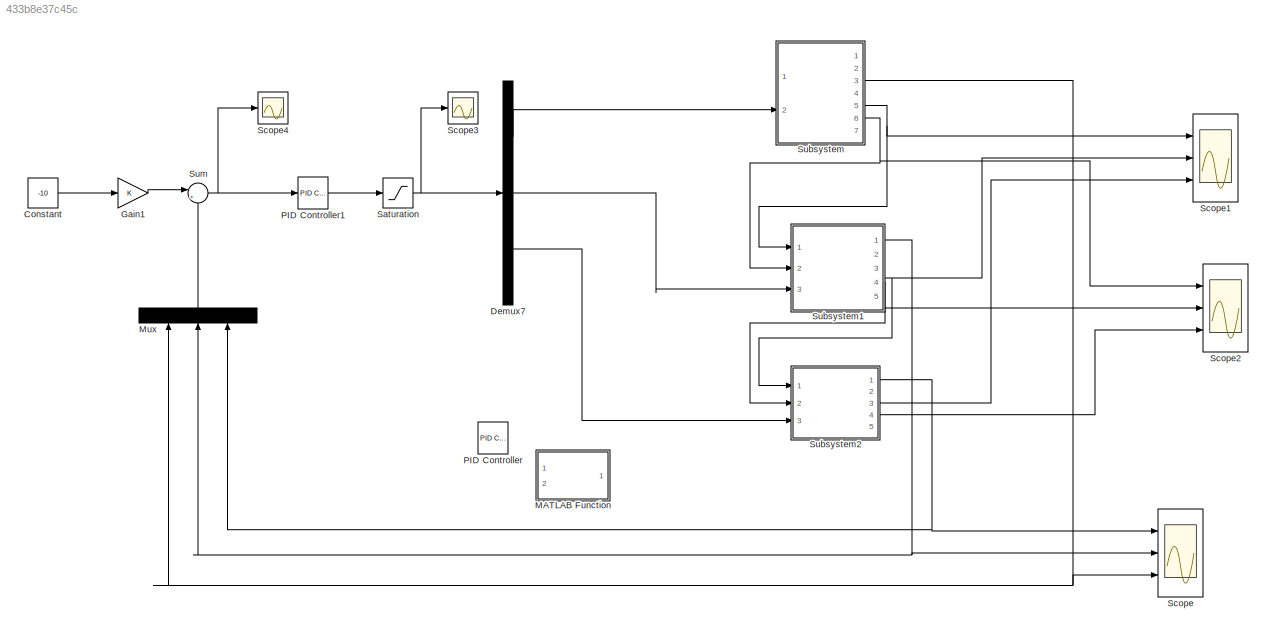
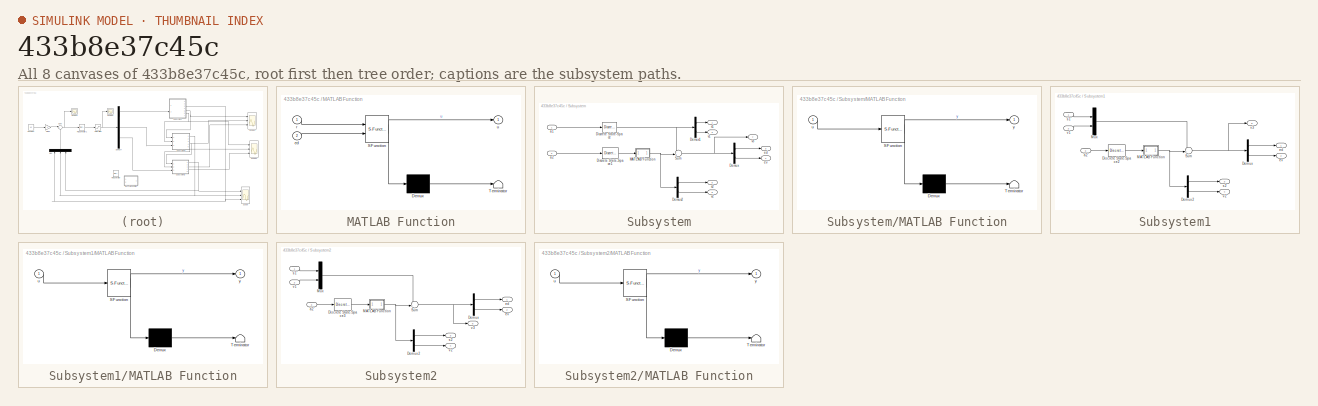
[diagram: thumbnail index - all 8 canvases of the model, root first then tree order]
MODEL slx_433b8e37c45c
KIND model
CONFIG AbsTol = auto
CONFIG EnableMultiTasking = off
CONFIG FixedStep = 0.1
CONFIG MaxStep = 1E-3
CONFIG MinStep = auto
CONFIG RelTol = 1e-3
CONFIG SampleTimeConstraint = Unconstrained
CONFIG Solver = FixedStepAuto
CONFIG SolverName = FixedStepAuto
CONFIG StartTime = 0.0
CONFIG StopTime = 500
BLOCK [Constant] Constant
  Value = -10
BLOCK [Demux] Demux7
  DisplayOption = bar
  Outputs = 3
  Ports = [1, 3]
BLOCK [Gain] Gain1
  OutDataTypeStr = Inherit: Inherit via internal rule
  ParamDataTypeStr = Inherit: Inherit via internal rule
  SaturateOnIntegerOverflow = off
BLOCK [SubSystem] MATLAB Function
  Commented = on
  ErrorFcn = Stateflow.Translate.translate
  PermitHierarchicalResolution = ExplicitOnly
  Ports = [2, 1]
  RequestExecContextInheritance = off
  SFBlockType = MATLAB Function
  TreatAsAtomicUnit = on
BLOCK [Demux] MATLAB Function/ Demux 
  Outputs = 1
  Ports = [1, 1]
BLOCK [S-Function] MATLAB Function/ SFunction 
  EnableBusSupport = on
  FunctionName = sf_sfun
  PortCounts = [2 2]
  Ports = [2, 2]
  SFcnIsStateOwnerBlock = off
  SFunctionDeploymentMode = off
  Tag = Stateflow S-Function onolfihjsihjn 3
BLOCK [Terminator] MATLAB Function/ Terminator 
BLOCK [Inport] MATLAB Function/ed
  IconDisplay = Port number
  Port = 2
BLOCK [Inport] MATLAB Function/r
  IconDisplay = Port number
BLOCK [Outport] MATLAB Function/u
  IconDisplay = Port number
BLOCK [Mux] Mux
  DisplayOption = bar
  Inputs = 3
  Ports = [3, 1]
BLOCK [Reference] PID Controller  REF=simulink/Continuous/PID Controller
  Commented = on
  Ports = [1, 1]
  SourceBlock = simulink/Continuous/PID Controller
  SourceProductBaseCode = SL
  SourceProductName = Simulink
  SourceType = PID 1dof
BLOCK [Reference] PID Controller1  REF=simulink/Continuous/PID Controller
  Ports = [1, 1]
  SourceBlock = simulink/Continuous/PID Controller
  SourceProductBaseCode = SL
  SourceProductName = Simulink
  SourceType = PID 1dof
BLOCK [Saturate] Saturation
  InputPortMap = u0
  LowerLimit = -5
  Ports = [1, 1]
  UpperLimit = 3
BLOCK [Scope] Scope
  Floating = off
  NumInputPorts = 3
  Ports = [3]
  ScopeSpecificationString = Simulink.scopes.TimeScopeBlockCfg('CurrentConfiguration', extmgr.ConfigurationSet(extmgr.Configuration('Core','General UI',true),extmgr.Configuration('Core','Source UI',true),extmgr.Configuration('Sources','WiredSimulink',true),extmgr.Configuration('Visuals','Time Domain',true,'SerializedDisplays',{struct('MinYLimReal','-120.75898','MaxYLimReal','7.9743','YLabelReal','','MinYLimMag',' 0.00000','Ma...<+1388ch>
BLOCK [Scope] Scope1
  Floating = off
  NumInputPorts = 3
  Ports = [3]
  ScopeSpecificationString = Simulink.scopes.TimeScopeBlockCfg('CurrentConfiguration', extmgr.ConfigurationSet(extmgr.Configuration('Core','General UI',true),extmgr.Configuration('Core','Source UI',true),extmgr.Configuration('Sources','WiredSimulink',true,'DataLoggingVariableName','ScopeData1'),extmgr.Configuration('Visuals','Time Domain',true,'SerializedDisplays',{struct('MinYLimReal','-811.25','MaxYLimReal','4301.25','YLabe...<+1444ch>
BLOCK [Scope] Scope2
  Floating = off
  NumInputPorts = 3
  Ports = [3]
  ScopeSpecificationString = Simulink.scopes.TimeScopeBlockCfg('CurrentConfiguration', extmgr.ConfigurationSet(extmgr.Configuration('Core','General UI',true),extmgr.Configuration('Core','Source UI',true),extmgr.Configuration('Sources','WiredSimulink',true,'DataLoggingVariableName','ScopeData2'),extmgr.Configuration('Visuals','Time Domain',true,'SerializedDisplays',{struct('MinYLimReal','14.45367','MaxYLimReal','23.94959','YLa...<+1477ch>
BLOCK [Scope] Scope3
  Floating = off
  NumInputPorts = 1
  Ports = [1]
  ScopeSpecificationString = Simulink.scopes.TimeScopeBlockCfg('CurrentConfiguration', extmgr.ConfigurationSet(extmgr.Configuration('Core','General UI',true),extmgr.Configuration('Core','Source UI',true),extmgr.Configuration('Sources','WiredSimulink',true,'DataLoggingVariableName','ScopeData1'),extmgr.Configuration('Visuals','Time Domain',true,'SerializedDisplays',{struct('MinYLimReal','-3.02279','MaxYLimReal','3.6692','YLabe...<+1397ch>
BLOCK [Scope] Scope4
  Floating = off
  NumInputPorts = 1
  Ports = [1]
  ScopeSpecificationString = Simulink.scopes.TimeScopeBlockCfg('CurrentConfiguration', extmgr.ConfigurationSet(extmgr.Configuration('Core','General UI',true),extmgr.Configuration('Core','Source UI',true),extmgr.Configuration('Sources','WiredSimulink',true,'DataLoggingVariableName','ScopeData2'),extmgr.Configuration('Visuals','Time Domain',true,'SerializedDisplays',{struct('MinYLimReal','-14.55745','MaxYLimReal','109.49593','Y...<+1390ch>
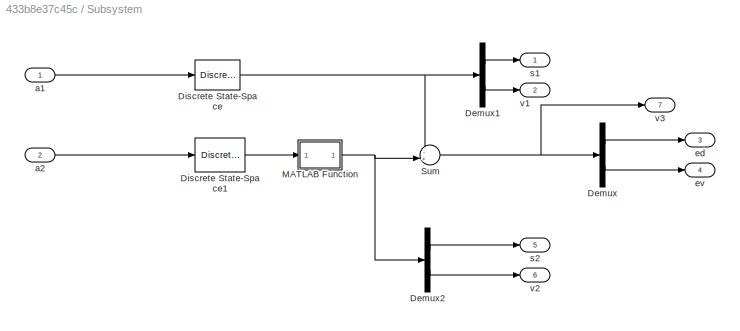
BLOCK [SubSystem] Subsystem
  Ports = [2, 7]
  RequestExecContextInheritance = off
BLOCK [Demux] Subsystem/Demux
  DisplayOption = bar
  Outputs = 2
  Ports = [1, 2]
BLOCK [Demux] Subsystem/Demux1
  DisplayOption = bar
  Outputs = 2
  Ports = [1, 2]
BLOCK [Demux] Subsystem/Demux2
  DisplayOption = bar
  Outputs = 2
  Ports = [1, 2]
BLOCK [DiscreteStateSpace] Subsystem/Discrete State-Space
  A = Ad
  B = bd
  C = eye(2)
  D = zeros(2,1)
  InitialCondition = [0;19]
  SampleTime = SumoTs
BLOCK [DiscreteStateSpace] Subsystem/Discrete State-Space1
  A = Ad
  B = bd
  C = eye(2)
  D = zeros(2,1)
  InitialCondition = [-100;22]
  SampleTime = SumoTs
BLOCK [SubSystem] Subsystem/MATLAB Function
  ErrorFcn = Stateflow.Translate.translate
  PermitHierarchicalResolution = ExplicitOnly
  Ports = [1, 1]
  RequestExecContextInheritance = off
  SFBlockType = MATLAB Function
  TreatAsAtomicUnit = on
BLOCK [Demux] Subsystem/MATLAB Function/ Demux 
  Outputs = 1
  Ports = [1, 1]
BLOCK [S-Function] Subsystem/MATLAB Function/ SFunction 
  EnableBusSupport = on
  FunctionName = sf_sfun
  PortCounts = [1 2]
  Ports = [1, 2]
  SFcnIsStateOwnerBlock = off
  SFunctionDeploymentMode = off
  Tag = Stateflow S-Function onolfihjsihjn 4
BLOCK [Terminator] Subsystem/MATLAB Function/ Terminator 
BLOCK [Inport] Subsystem/MATLAB Function/u
  IconDisplay = Port number
BLOCK [Outport] Subsystem/MATLAB Function/y
  IconDisplay = Port number
BLOCK [Sum] Subsystem/Sum
  IconShape = round
  InputSameDT = off
  Inputs = -+|
  OutDataTypeStr = Inherit: Inherit via internal rule
  Ports = [2, 1]
  SaturateOnIntegerOverflow = off
BLOCK [Inport] Subsystem/a1
  IconDisplay = Port number
BLOCK [Inport] Subsystem/a2
  IconDisplay = Port number
  Port = 2
BLOCK [Outport] Subsystem/ed
  IconDisplay = Port number
  Port = 3
BLOCK [Outport] Subsystem/ev
  IconDisplay = Port number
  Port = 4
BLOCK [Outport] Subsystem/s1
  IconDisplay = Port number
BLOCK [Outport] Subsystem/s2
  IconDisplay = Port number
  Port = 5
BLOCK [Outport] Subsystem/v1
  IconDisplay = Port number
  Port = 2
BLOCK [Outport] Subsystem/v2
  IconDisplay = Port number
  Port = 6
BLOCK [Outport] Subsystem/v3
  IconDisplay = Port number
  Port = 7
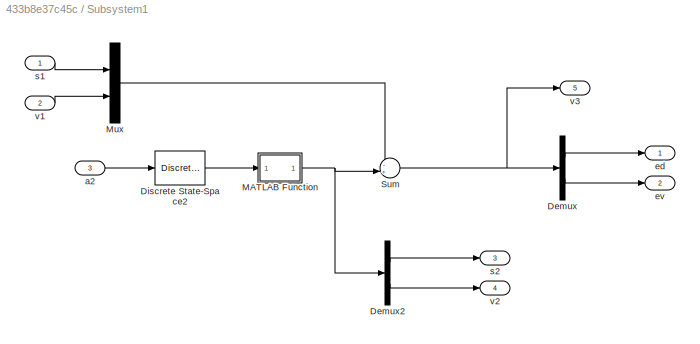
BLOCK [SubSystem] Subsystem1
  Ports = [3, 5]
  RequestExecContextInheritance = off
BLOCK [Demux] Subsystem1/Demux
  DisplayOption = bar
  Outputs = 2
  Ports = [1, 2]
BLOCK [Demux] Subsystem1/Demux2
  DisplayOption = bar
  Outputs = 2
  Ports = [1, 2]
BLOCK [DiscreteStateSpace] Subsystem1/Discrete State-Space2
  A = Ad
  B = bd
  C = eye(2)
  D = zeros(2,1)
  InitialCondition = [-200;19]
  SampleTime = SumoTs
BLOCK [SubSystem] Subsystem1/MATLAB Function
  ErrorFcn = Stateflow.Translate.translate
  PermitHierarchicalResolution = ExplicitOnly
  Ports = [1, 1]
  RequestExecContextInheritance = off
  SFBlockType = MATLAB Function
  TreatAsAtomicUnit = on
BLOCK [Demux] Subsystem1/MATLAB Function/ Demux 
  Outputs = 1
  Ports = [1, 1]
BLOCK [S-Function] Subsystem1/MATLAB Function/ SFunction 
  EnableBusSupport = on
  FunctionName = sf_sfun
  PortCounts = [1 2]
  Ports = [1, 2]
  SFcnIsStateOwnerBlock = off
  SFunctionDeploymentMode = off
  Tag = Stateflow S-Function onolfihjsihjn 1
BLOCK [Terminator] Subsystem1/MATLAB Function/ Terminator 
BLOCK [Inport] Subsystem1/MATLAB Function/u
  IconDisplay = Port number
BLOCK [Outport] Subsystem1/MATLAB Function/y
  IconDisplay = Port number
BLOCK [Mux] Subsystem1/Mux
  DisplayOption = bar
  Inputs = 2
  Ports = [2, 1]
BLOCK [Sum] Subsystem1/Sum
  IconShape = round
  InputSameDT = off
  Inputs = -+|
  OutDataTypeStr = Inherit: Inherit via internal rule
  Ports = [2, 1]
  SaturateOnIntegerOverflow = off
BLOCK [Inport] Subsystem1/a2
  IconDisplay = Port number
  Port = 3
BLOCK [Outport] Subsystem1/ed
  IconDisplay = Port number
BLOCK [Outport] Subsystem1/ev
  IconDisplay = Port number
  Port = 2
BLOCK [Inport] Subsystem1/s1
  IconDisplay = Port number
BLOCK [Outport] Subsystem1/s2
  IconDisplay = Port number
  Port = 3
BLOCK [Inport] Subsystem1/v1
  IconDisplay = Port number
  Port = 2
BLOCK [Outport] Subsystem1/v2
  IconDisplay = Port number
  Port = 4
BLOCK [Outport] Subsystem1/v3
  IconDisplay = Port number
  Port = 5
BLOCK [SubSystem] Subsystem2
  Ports = [3, 5]
  RequestExecContextInheritance = off
BLOCK [Demux] Subsystem2/Demux
  DisplayOption = bar
  Outputs = 2
  Ports = [1, 2]
BLOCK [Demux] Subsystem2/Demux2
  DisplayOption = bar
  Outputs = 2
  Ports = [1, 2]
BLOCK [DiscreteStateSpace] Subsystem2/Discrete State-Space3
  A = Ad
  B = bd
  C = eye(2)
  D = zeros(2,1)
  InitialCondition = [-280;22]
  SampleTime = SumoTs
BLOCK [SubSystem] Subsystem2/MATLAB Function
  ErrorFcn = Stateflow.Translate.translate
  PermitHierarchicalResolution = ExplicitOnly
  Ports = [1, 1]
  RequestExecContextInheritance = off
  SFBlockType = MATLAB Function
  TreatAsAtomicUnit = on
BLOCK [Demux] Subsystem2/MATLAB Function/ Demux 
  Outputs = 1
  Ports = [1, 1]
BLOCK [S-Function] Subsystem2/MATLAB Function/ SFunction 
  EnableBusSupport = on
  FunctionName = sf_sfun
  PortCounts = [1 2]
  Ports = [1, 2]
  SFcnIsStateOwnerBlock = off
  SFunctionDeploymentMode = off
  Tag = Stateflow S-Function onolfihjsihjn 2
BLOCK [Terminator] Subsystem2/MATLAB Function/ Terminator 
BLOCK [Inport] Subsystem2/MATLAB Function/u
  IconDisplay = Port number
BLOCK [Outport] Subsystem2/MATLAB Function/y
  IconDisplay = Port number
BLOCK [Mux] Subsystem2/Mux
  DisplayOption = bar
  Inputs = 2
  Ports = [2, 1]
BLOCK [Sum] Subsystem2/Sum
  IconShape = round
  InputSameDT = off
  Inputs = -+|
  OutDataTypeStr = Inherit: Inherit via internal rule
  Ports = [2, 1]
  SaturateOnIntegerOverflow = off
BLOCK [Inport] Subsystem2/a2
  IconDisplay = Port number
  Port = 3
BLOCK [Outport] Subsystem2/ed
  IconDisplay = Port number
BLOCK [Outport] Subsystem2/ev
  IconDisplay = Port number
  Port = 2
BLOCK [Inport] Subsystem2/s1
  IconDisplay = Port number
BLOCK [Outport] Subsystem2/s2
  IconDisplay = Port number
  Port = 3
BLOCK [Inport] Subsystem2/v1
  IconDisplay = Port number
  Port = 2
BLOCK [Outport] Subsystem2/v2
  IconDisplay = Port number
  Port = 4
BLOCK [Outport] Subsystem2/v3
  IconDisplay = Port number
  Port = 5
BLOCK [Sum] Sum
  IconShape = round
  InputSameDT = off
  Inputs = |+-
  OutDataTypeStr = Inherit: Inherit via internal rule
  Ports = [2, 1]
  SaturateOnIntegerOverflow = off
LINE Constant:1 -> Gain1:1
LINE Demux7:1 -> Subsystem:2
LINE Demux7:2 -> Subsystem1:3
LINE Demux7:3 -> Subsystem2:3
LINE Gain1:1 -> Sum:1
LINE Mux:1 -> Sum:2
LINE PID Controller1:1 -> Saturation:1
NET Saturation:1 -> Demux7:1, Scope3:1
LINE Subsystem/Demux1:1 -> Subsystem/s1:1
LINE Subsystem/Demux1:2 -> Subsystem/v1:1
LINE Subsystem/Demux2:1 -> Subsystem/s2:1
LINE Subsystem/Demux2:2 -> Subsystem/v2:1
LINE Subsystem/Demux:1 -> Subsystem/ed:1
LINE Subsystem/Demux:2 -> Subsystem/ev:1
LINE Subsystem/Discrete State-Space1:1 -> Subsystem/MATLAB Function:1
NET Subsystem/Discrete State-Space:1 -> Subsystem/Demux1:1, Subsystem/Sum:1
NET Subsystem/MATLAB Function:1 -> Subsystem/Demux2:1, Subsystem/Sum:2
NET Subsystem/Sum:1 -> Subsystem/Demux:1, Subsystem/v3:1
LINE Subsystem/a1:1 -> Subsystem/Discrete State-Space:1
LINE Subsystem/a2:1 -> Subsystem/Discrete State-Space1:1
LINE Subsystem1/Demux2:1 -> Subsystem1/s2:1
LINE Subsystem1/Demux2:2 -> Subsystem1/v2:1
LINE Subsystem1/Demux:1 -> Subsystem1/ed:1
LINE Subsystem1/Demux:2 -> Subsystem1/ev:1
LINE Subsystem1/Discrete State-Space2:1 -> Subsystem1/MATLAB Function:1
NET Subsystem1/MATLAB Function:1 -> Subsystem1/Demux2:1, Subsystem1/Sum:2
LINE Subsystem1/Mux:1 -> Subsystem1/Sum:1
NET Subsystem1/Sum:1 -> Subsystem1/Demux:1, Subsystem1/v3:1
LINE Subsystem1/a2:1 -> Subsystem1/Discrete State-Space2:1
LINE Subsystem1/s1:1 -> Subsystem1/Mux:1
LINE Subsystem1/v1:1 -> Subsystem1/Mux:2
NET Subsystem1:1 -> Mux:2, Scope:2
NET Subsystem1:3 -> Scope1:2, Subsystem2:1
NET Subsystem1:4 -> Scope2:2, Subsystem2:2
LINE Subsystem2/Demux2:1 -> Subsystem2/s2:1
LINE Subsystem2/Demux2:2 -> Subsystem2/v2:1
LINE Subsystem2/Demux:1 -> Subsystem2/ed:1
LINE Subsystem2/Demux:2 -> Subsystem2/ev:1
LINE Subsystem2/Discrete State-Space3:1 -> Subsystem2/MATLAB Function:1
NET Subsystem2/MATLAB Function:1 -> Subsystem2/Demux2:1, Subsystem2/Sum:2
LINE Subsystem2/Mux:1 -> Subsystem2/Sum:1
NET Subsystem2/Sum:1 -> Subsystem2/Demux:1, Subsystem2/v3:1
LINE Subsystem2/a2:1 -> Subsystem2/Discrete State-Space3:1
LINE Subsystem2/s1:1 -> Subsystem2/Mux:1
LINE Subsystem2/v1:1 -> Subsystem2/Mux:2
NET Subsystem2:1 -> Mux:3, Scope:1
LINE Subsystem2:3 -> Scope1:3
LINE Subsystem2:4 -> Scope2:3
NET Subsystem:3 -> Mux:1, Scope:3
NET Subsystem:5 -> Scope1:1, Subsystem1:1
NET Subsystem:6 -> Scope2:1, Subsystem1:2
NET Sum:1 -> PID Controller1:1, Scope4:1
note: NET lines group one-source signal fan-out (src -> all destinations, sorted); 1:1 wires keep LINE
CHART Subsystem1/MATLAB Function states=1 transitions=1
  STATE_LABEL 'eML_blk_kernel()'
  STATE_LABEL 'SCRIPT:\nfunction y = fcn(u)\nif u(2) >= 23\n    y = [u(1);23];\nelseif u(2) <= 15\n    y = [u(1);15];\nelse\n    y = [u(1);u(2)];\nend\n'
CHART Subsystem2/MATLAB Function states=1 transitions=1
  STATE_LABEL 'eML_blk_kernel()'
  STATE_LABEL 'SCRIPT:\nfunction y = fcn(u)\nif u(2) >= 23\n    y = [u(1);23];\nelseif u(2) <= 15\n    y = [u(1);15];\nelse\n    y = [u(1);u(2)];\nend\n'
CHART MATLAB Function states=1 transitions=1
  STATE_LABEL 'eML_blk_kernel()'
  STATE_LABEL 'SCRIPT:\nfunction u = fcn(r,ed)\nTs = 0.1;\npersistent temp;\nif isempty(temp)\n    temp = zeros(size(ed));\nend\n\nif length(temp) < length(ed)\n    temp = [temp;0];\nelseif length(temp) > length(ed)\n    temp = temp(1:end-1);\nend\n\ne0 = r-temp;\ne1 = r-ed;\n\nkp = 0.1;\nkd = 1;\n% u = kp*e1 + kd*(e1-e0)/Ts;\nu = kp*e1 + kd*(e1-e0)/Ts;\ntemp(:) = ed;\n\n'
CHART Subsystem/MATLAB Function states=1 transitions=1
  STATE_LABEL 'eML_blk_kernel()'
  STATE_LABEL 'SCRIPT:\nfunction y = fcn(u)\nif u(2) >= 23\n    y = [u(1);23];\nelseif u(2) <= 15\n    y = [u(1);15];\nelse\n    y = [u(1);u(2)];\nend\n'
